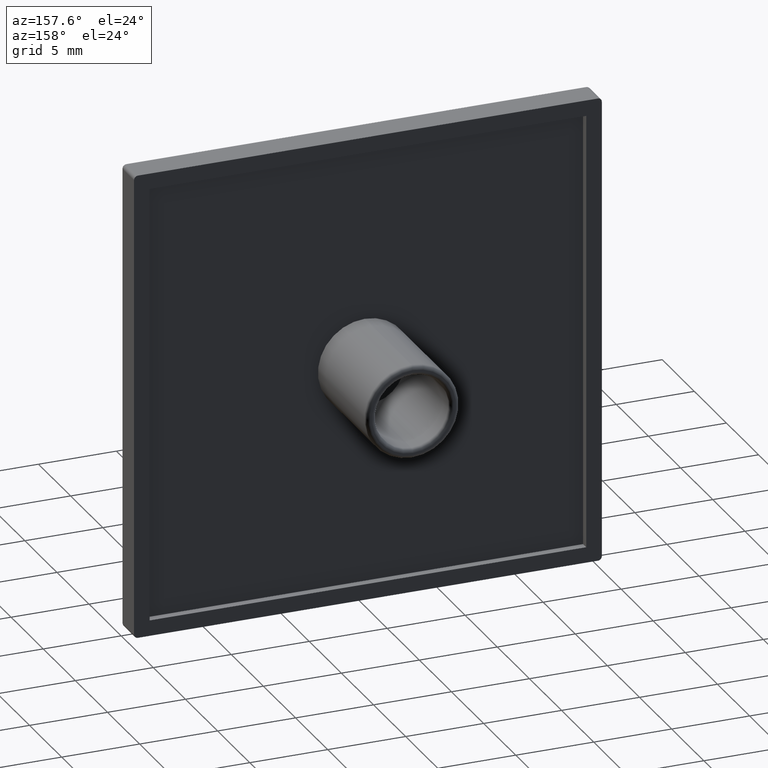
[diagram: clean part render]
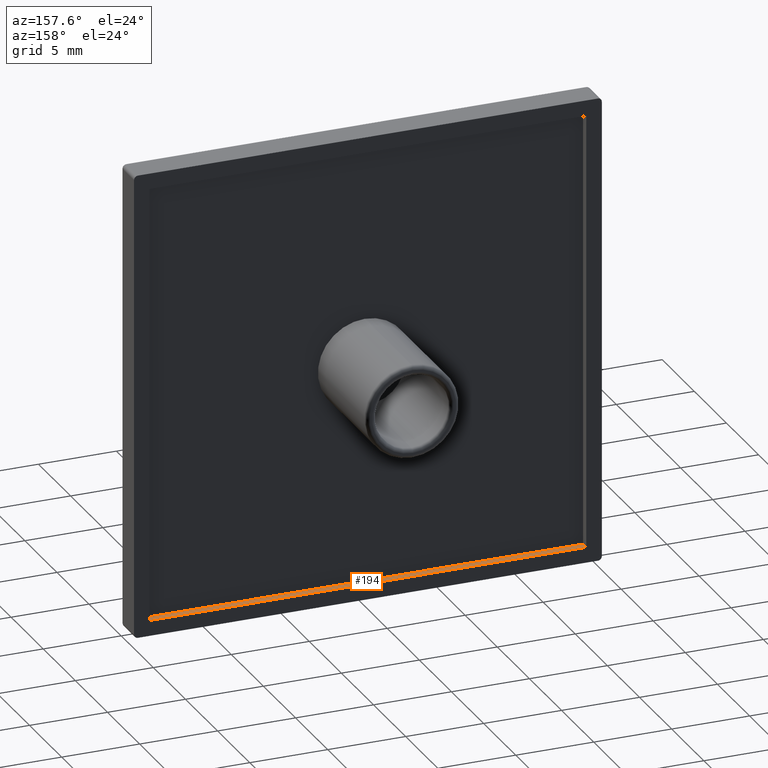
[diagram: same view with one face highlighted and labeled with its STEP entity id]
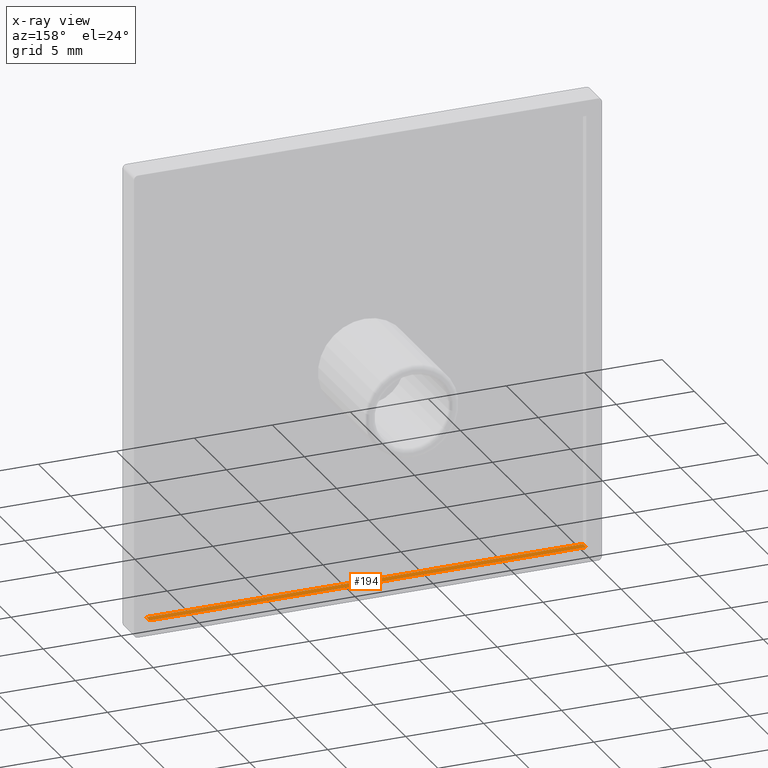
[diagram: x-ray of the same camera — body ghosted, the highlighted face saturated]
A machine part, auxiliary view. The second image highlights one B-rep face of the part: STEP entity #194.
The next image is the same camera in x-ray: the body ghosted, the highlighted face saturated — about 0% of this face is hidden behind the body in this view.
In plain terms, the highlighted planar face has unit normal (0, 0, -1).
Its self-contained STEP definition (entity closure, byte-faithful):
#6 = CARTESIAN_POINT ( 'NONE',  ( 14.00000000000000000, 1.750000000000000000, -14.00000000000000000 ) ) ;
#7 = DIRECTION ( 'NONE',  ( -0.0000000000000000000, -1.000000000000000000, -0.0000000000000000000 ) ) ;
#12 = CARTESIAN_POINT ( 'NONE',  ( -14.00000000000000000, 1.750000000000000000, -14.00000000000000000 ) ) ;
#13 = DIRECTION ( 'NONE',  ( -0.0000000000000000000, -1.000000000000000000, -0.0000000000000000000 ) ) ;
#14 = CARTESIAN_POINT ( 'NONE',  ( 0.0000000000000000000, 1.500000000000000000, -14.00000000000000000 ) ) ;
#15 = DIRECTION ( 'NONE',  ( -1.000000000000000000, -0.0000000000000000000, -0.0000000000000000000 ) ) ;
#51 = CARTESIAN_POINT ( 'NONE',  ( -14.00000000000000000, 1.500000000000000000, -14.00000000000000000 ) ) ;
#63 = CARTESIAN_POINT ( 'NONE',  ( 14.00000000000000000, 1.500000000000000000, -14.00000000000000000 ) ) ;
#64 = CARTESIAN_POINT ( 'NONE',  ( -14.00000000249999800, 2.000000000000000000, -14.00000000249999800 ) ) ;
#65 = CARTESIAN_POINT ( 'NONE',  ( 14.00000000249999800, 2.000000000000000000, -14.00000000249999800 ) ) ;
#194 = ADVANCED_FACE ( 'NONE', ( #688 ), #829, .F. ) ;
#291 = EDGE_LOOP ( 'NONE', ( #596, #597, #598, #599 ) ) ;
#424 = EDGE_CURVE ( 'NONE', #499, #500, #763, .T. ) ;
#428 = EDGE_CURVE ( 'NONE', #500, #498, #769, .T. ) ;
#431 = EDGE_CURVE ( 'NONE', #499, #478, #730, .T. ) ;
#432 = EDGE_CURVE ( 'NONE', #498, #478, #735, .T. ) ;
#478 = VERTEX_POINT ( 'NONE', #51 ) ;
#498 = VERTEX_POINT ( 'NONE', #63 ) ;
#499 = VERTEX_POINT ( 'NONE', #64 ) ;
#500 = VERTEX_POINT ( 'NONE', #65 ) ;
#566 = AXIS2_PLACEMENT_3D ( 'NONE', #830, #831, #832 ) ;
#596 = ORIENTED_EDGE ( 'NONE', *, *, #431, .T. ) ;
#597 = ORIENTED_EDGE ( 'NONE', *, *, #432, .F. ) ;
#598 = ORIENTED_EDGE ( 'NONE', *, *, #428, .F. ) ;
#599 = ORIENTED_EDGE ( 'NONE', *, *, #424, .F. ) ;
#649 = VECTOR ( 'NONE', #7, 1000.000000000000000 ) ;
#688 = FACE_OUTER_BOUND ( 'NONE', #291, .T. ) ;
#730 = LINE ( 'NONE', #12, #734 ) ;
#734 = VECTOR ( 'NONE', #13, 1000.000000000000000 ) ;
#735 = LINE ( 'NONE', #14, #737 ) ;
#737 = VECTOR ( 'NONE', #15, 1000.000000000000000 ) ;
#763 = LINE ( 'NONE', #917, #764 ) ;
#764 = VECTOR ( 'NONE', #918, 1000.000000000000000 ) ;
#769 = LINE ( 'NONE', #6, #649 ) ;
#829 = PLANE ( 'NONE',  #566 ) ;
#830 = CARTESIAN_POINT ( 'NONE',  ( 14.00000000000000000, 1.500000000000000000, -14.00000000000000000 ) ) ;
#831 = DIRECTION ( 'NONE',  ( 0.0000000000000000000, 0.0000000000000000000, -1.000000000000000000 ) ) ;
#832 = DIRECTION ( 'NONE',  ( -1.000000000000000000, 0.0000000000000000000, 0.0000000000000000000 ) ) ;
#917 = CARTESIAN_POINT ( 'NONE',  ( 0.0000000000000000000, 2.000000000000000000, -14.00000000000000000 ) ) ;
#918 = DIRECTION ( 'NONE',  ( 1.000000000000000000, -0.0000000000000000000, -0.0000000000000000000 ) ) ;